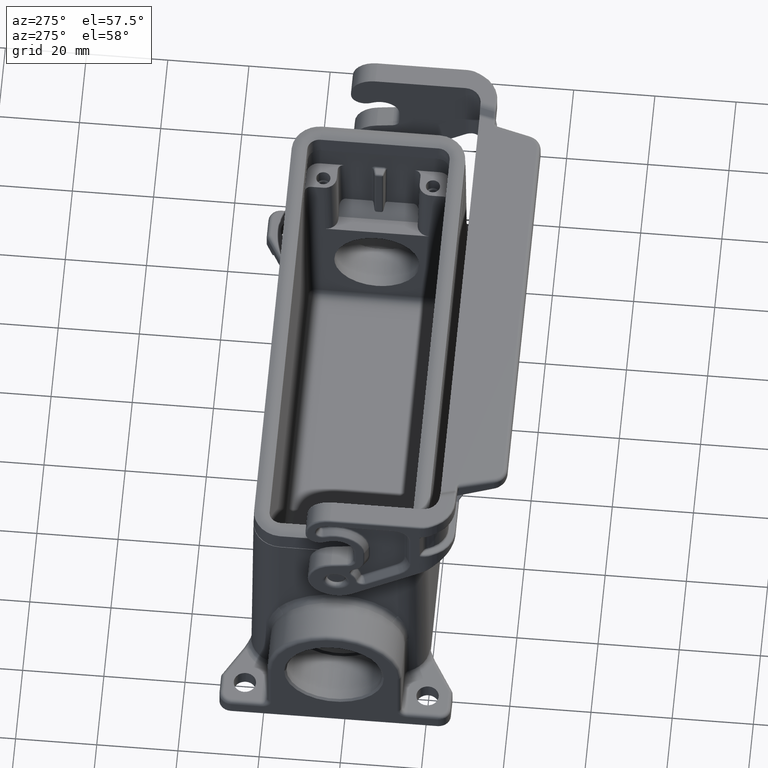
[diagram: clean part render]
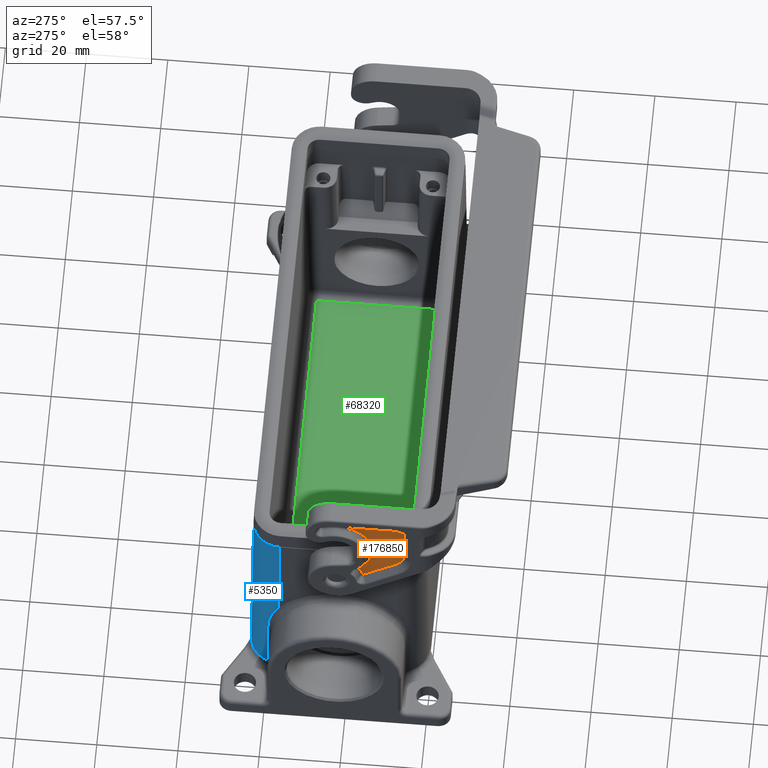
[diagram: same view with three faces highlighted in distinct colors, each labeled with its STEP entity id]
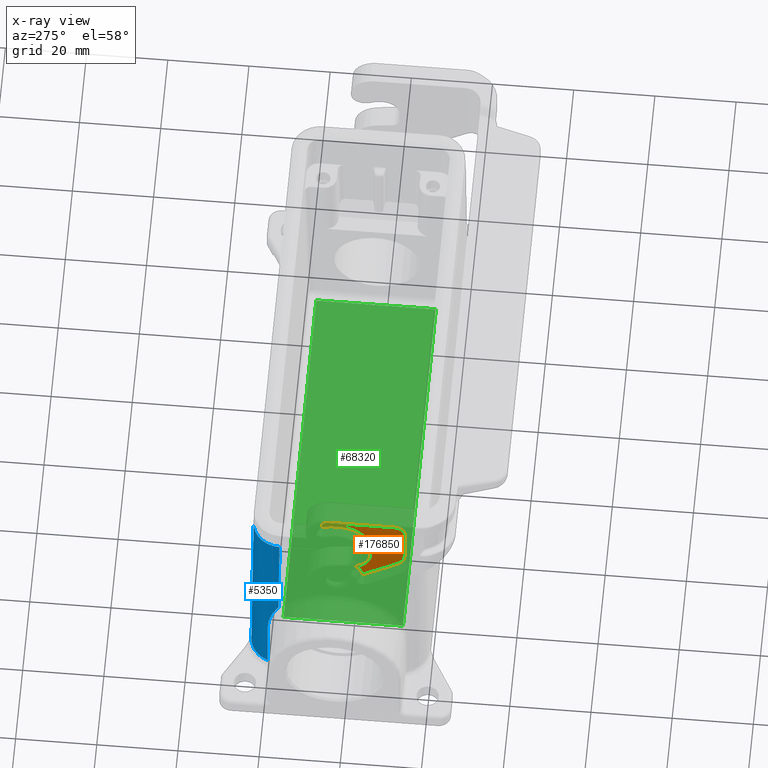
[diagram: x-ray of the same camera — body ghosted, the three highlighted faces saturated]
A machine part, auxiliary view with three faces highlighted in distinct colors.
The next image is the same camera in x-ray (body ghosted, the three faces saturated) — at least one of them is partly hidden behind the body in this view.
Their STEP definitions:

[orange] entity #176850 — the highlighted planar face has unit normal (-1, -0, 0).
#175360=CARTESIAN_POINT('',(-16.6989291725245,65.0000003246407,
75.4999999999994));
#175370=VERTEX_POINT('',#175360);
#175400=CARTESIAN_POINT('',(-14.1423048454985,65.0000003246407,
75.4999999999994));
#175410=DIRECTION('',(1.86243165512249E-16,1.,8.48534445547922E-16));
#175420=DIRECTION('',(-1.,1.86243165512251E-16,-1.3790124416382E-15));
#175430=AXIS2_PLACEMENT_3D('',#175400,#175410,#175420);
#175440=CIRCLE('',#175430,2.55662432702599);
#175450=CARTESIAN_POINT('',(-14.1423048454985,65.0000003246407,
78.0566243270254));
#175460=VERTEX_POINT('',#175450);
#175470=EDGE_CURVE('',#175370,#175460,#175440,.T.);
#175670=CARTESIAN_POINT('',(-9.57115242274739,65.0000003246407,
67.5781854772389));
#175680=DIRECTION('',(-1.86243165512249E-16,1.,3.60655932882432E-15));
#175690=DIRECTION('',(-1.,-1.86243165511833E-16,-1.1535174204059E-13));
#175700=AXIS2_PLACEMENT_3D('',#175670,#175680,#175690);
#175710=PLANE('',#175700);
#175720=CARTESIAN_POINT('',(-12.1423048454985,65.0000003246407,
65.3332952671978));
#175730=DIRECTION('',(1.86243165512249E-16,1.,8.48534445547922E-16));
#175740=DIRECTION('',(-1.,1.86243165512251E-16,-1.3790124416382E-15));
#175750=AXIS2_PLACEMENT_3D('',#175720,#175730,#175740);
#175760=CIRCLE('',#175750,4.55662432702599);
#175770=CARTESIAN_POINT('',(-14.7558771887841,65.0000003246407,
61.6007271346572));
#175780=VERTEX_POINT('',#175770);
#175790=CARTESIAN_POINT('',(-16.6989291725245,65.0000003246407,
65.3332952671978));
#175800=VERTEX_POINT('',#175790);
#175810=EDGE_CURVE('',#175780,#175800,#175760,.T.);
#175820=ORIENTED_EDGE('',*,*,#175810,.T.);
#175830=CARTESIAN_POINT('',(334.36292398244,65.0000003246417,
-182.854889176111));
#175840=DIRECTION('',(0.819152044289058,2.22505120191135E-15,
-0.573576436350952));
#175850=VECTOR('',#175840,1.);
#175860=LINE('',#175830,#175850);
#175870=CARTESIAN_POINT('',(-6.47666880141725,65.0000003246407,
55.8035630114154));
#175880=VERTEX_POINT('',#175870);
#175890=EDGE_CURVE('',#175780,#175880,#175860,.T.);
#175900=ORIENTED_EDGE('',*,*,#175890,.F.);
#175910=CARTESIAN_POINT('',(-6.44419042171097,65.0000003246407,
55.8499469446551));
#175920=DIRECTION('',(1.86243165512249E-16,1.,8.48534445547922E-16));
#175930=DIRECTION('',(-1.,1.86243165512251E-16,-1.3790124416382E-15));
#175940=AXIS2_PLACEMENT_3D('',#175910,#175920,#175930);
#175950=CIRCLE('',#175940,0.0566243270259292);
#175960=CARTESIAN_POINT('',(-6.38805227619469,65.0000003246407,
55.8425426871553));
#175970=VERTEX_POINT('',#175960);
#175980=EDGE_CURVE('',#175970,#175880,#175950,.T.);
#175990=ORIENTED_EDGE('',*,*,#175980,.T.);
#176000=CARTESIAN_POINT('',(0.,65.0000003246407,55.));
#176010=DIRECTION('',(1.86243165512249E-16,1.,8.48534445547922E-16));
#176020=DIRECTION('',(1.,-1.86243165512251E-16,1.3790124416382E-15));
#176030=AXIS2_PLACEMENT_3D('',#176000,#176010,#176020);
#176040=CIRCLE('',#176030,6.44337567297413);
#176050=CARTESIAN_POINT('',(-4.95567186128972,65.0000003246407,
59.1180585797552));
#176060=VERTEX_POINT('',#176050);
#176070=EDGE_CURVE('',#175970,#176060,#176040,.T.);
#176080=ORIENTED_EDGE('',*,*,#176070,.F.);
#176090=CARTESIAN_POINT('',(-4.99922226069975,65.0000003246407,
59.1542480412373));
#176100=DIRECTION('',(1.86243165512249E-16,1.,8.48534445547922E-16));
#176110=DIRECTION('',(-1.,1.86243165512251E-16,-1.3790124416382E-15));
#176120=AXIS2_PLACEMENT_3D('',#176090,#176100,#176110);
#176130=CIRCLE('',#176120,0.0566243270259292);
#176140=CARTESIAN_POINT('',(-4.97469239214928,65.0000003246407,
59.2052833227594));
#176150=VERTEX_POINT('',#176140);
#176160=EDGE_CURVE('',#176150,#176060,#176130,.T.);
#176170=ORIENTED_EDGE('',*,*,#176160,.T.);
#176180=CARTESIAN_POINT('',(-2.3999999999989,65.0000003246407,
64.5620242606714));
#176190=DIRECTION('',(1.86243165512249E-16,1.,8.48534445547922E-16));
#176200=DIRECTION('',(1.,-1.86243165512251E-16,1.3790124416382E-15));
#176210=AXIS2_PLACEMENT_3D('',#176180,#176190,#176200);
#176220=CIRCLE('',#176210,5.94337567297407);
#176230=CARTESIAN_POINT('',(-8.34337567297291,65.0000003246407,
64.5620242606708));
#176240=VERTEX_POINT('',#176230);
#176250=EDGE_CURVE('',#176150,#176240,#176220,.T.);
#176260=ORIENTED_EDGE('',*,*,#176250,.F.);
#176270=CARTESIAN_POINT('',(-8.34337567298729,65.0000003246403,
189.232226182514));
#176280=DIRECTION('',(-1.1535174204059E-13,-3.60655932882434E-15,1.));
#176290=VECTOR('',#176280,1.);
#176300=LINE('',#176270,#176290);
#176310=CARTESIAN_POINT('',(-8.34337567297257,65.0000003246407,
68.3999999999979));
#176320=VERTEX_POINT('',#176310);
#176330=EDGE_CURVE('',#176240,#176320,#176300,.T.);
#176340=ORIENTED_EDGE('',*,*,#176330,.F.);
#176350=CARTESIAN_POINT('',(1.47792889038101E-12,65.0000003246407,
68.3999999999988));
#176360=DIRECTION('',(-1.86243165512249E-16,-1.,-8.48534445547922E-16));
#176370=DIRECTION('',(1.,-1.86243165512251E-16,1.3790124416382E-15));
#176380=AXIS2_PLACEMENT_3D('',#176350,#176360,#176370);
#176390=CIRCLE('',#176380,8.34337567297405);
#176400=CARTESIAN_POINT('',(3.47640653040582,65.0000003246407,
75.9846236067269));
#176410=VERTEX_POINT('',#176400);
#176420=EDGE_CURVE('',#176410,#176320,#176390,.T.);
#176430=ORIENTED_EDGE('',*,*,#176420,.T.);
#176440=CARTESIAN_POINT('',(3.5,65.0000003246407,76.0360984802445));
#176450=DIRECTION('',(-1.86243165512249E-16,-1.,-8.48534445547922E-16));
#176460=DIRECTION('',(-1.,1.86243165512251E-16,-1.3790124416382E-15));
#176470=AXIS2_PLACEMENT_3D('',#176440,#176450,#176460);
#176480=CIRCLE('',#176470,0.0566243270259861);
#176490=CARTESIAN_POINT('',(3.55662432702599,65.0000003246407,
76.0360984802445));
#176500=VERTEX_POINT('',#176490);
#176510=EDGE_CURVE('',#176410,#176500,#176480,.T.);
#176520=ORIENTED_EDGE('',*,*,#176510,.F.);
#176530=CARTESIAN_POINT('',(3.55662432701291,65.0000003246403,
189.232226182514));
#176540=DIRECTION('',(-1.1535174204059E-13,-3.60655932882434E-15,1.));
#176550=VECTOR('',#176540,1.);
#176560=LINE('',#176530,#176550);
#176570=CARTESIAN_POINT('',(3.55662432702593,65.0000003246407,
76.4999999999996));
#176580=VERTEX_POINT('',#176570);
#176590=EDGE_CURVE('',#176500,#176580,#176560,.T.);
#176600=ORIENTED_EDGE('',*,*,#176590,.F.);
#176610=CARTESIAN_POINT('',(1.99999999999994,65.0000003246407,
76.4999999999995));
#176620=DIRECTION('',(-1.86243165512249E-16,-1.,-8.48534445547922E-16));
#176630=DIRECTION('',(-1.,1.86243165512251E-16,-1.3790124416382E-15));
#176640=AXIS2_PLACEMENT_3D('',#176610,#176620,#176630);
#176650=CIRCLE('',#176640,1.55662432702599);
#176660=CARTESIAN_POINT('',(1.99999999999994,65.0000003246407,
78.0566243270254));
#176670=VERTEX_POINT('',#176660);
#176680=EDGE_CURVE('',#176580,#176670,#176650,.T.);
#176690=ORIENTED_EDGE('',*,*,#176680,.F.);
#176700=CARTESIAN_POINT('',(334.362923982439,65.0000003246407,
78.0566243270256));
#176710=DIRECTION('',(-1.,-1.86243165512247E-16,-5.3047799609028E-16));
#176720=VECTOR('',#176710,1.);
#176730=LINE('',#176700,#176720);
#176740=EDGE_CURVE('',#176670,#175460,#176730,.T.);
#176750=ORIENTED_EDGE('',*,*,#176740,.F.);
#176760=ORIENTED_EDGE('',*,*,#175470,.T.);
#176770=CARTESIAN_POINT('',(-16.6989291725251,65.0000003246403,
189.232226182514));
#176780=DIRECTION('',(-5.30751722246423E-15,-3.60655932882432E-15,1.));
#176790=VECTOR('',#176780,1.);
#176800=LINE('',#176770,#176790);
#176810=EDGE_CURVE('',#175800,#175370,#176800,.T.);
#176820=ORIENTED_EDGE('',*,*,#176810,.T.);
#176830=EDGE_LOOP('',(#176820,#176760,#176750,#176690,#176600,#176520,
#176430,#176340,#176260,#176170,#176080,#175990,#175900,#175820));
#176840=FACE_OUTER_BOUND('',#176830,.T.);
#176850=ADVANCED_FACE('',(#176840),#175710,.T.);

[blue] entity #5350 — the highlighted cylindrical surface (edge-blend (fillet) strip) has radius 7 mm, axis along (0.0087, -0.0087, 0.9999).
#3600=CARTESIAN_POINT('',(15.0015283492685,53.5015283492682,0.));
#3610=DIRECTION('',(-0.00872620324394422,-0.00872620324394422,
0.99992385047757));
#3620=DIRECTION('',(0.999961923064171,0.,0.00872653549837393));
#3630=AXIS2_PLACEMENT_3D('',#3600,#3610,#3620);
#3640=CYLINDRICAL_SURFACE('',#3630,7.);
#3650=CARTESIAN_POINT('',(21.9539113581018,53.4541778966523,
5.48691019675244));
#3660=CARTESIAN_POINT('',(21.9539121808302,53.5051315589697,
5.48681592141895));
#3670=CARTESIAN_POINT('',(21.9533567025193,53.5560838336728,
5.48672070053648));
#3680=CARTESIAN_POINT('',(21.9486232468649,53.7729838171622,
5.486324013355));
#3690=CARTESIAN_POINT('',(21.9390995826001,53.9387624881312,
5.48603186379289));
#3700=CARTESIAN_POINT('',(21.904791363169,54.3067947735148,
5.48540790081217));
#3710=CARTESIAN_POINT('',(21.8770369462102,54.5087985916887,
5.48508210717947));
#3720=CARTESIAN_POINT('',(21.7367932081214,55.2782635866854,
5.48390565390257));
#3730=CARTESIAN_POINT('',(21.56305770488,55.8320161765169,
5.48319513698692));
#3740=CARTESIAN_POINT('',(21.0833844857239,56.8841407875998,
5.48212482617256));
#3750=CARTESIAN_POINT('',(20.7792948535255,57.3784602017461,
5.48176915406537));
#3760=CARTESIAN_POINT('',(20.0565024369308,58.2810211844696,
5.48143304126501));
#3770=CARTESIAN_POINT('',(19.6405841075601,58.6857855463389,
5.48145389580779));
#3780=CARTESIAN_POINT('',(18.7187121366584,59.3837830124946,
5.48187247336191));
#3790=CARTESIAN_POINT('',(18.2163098859177,59.674326954534,
5.48226858426677));
#3800=CARTESIAN_POINT('',(17.1515355316433,60.1252310501773,
5.48341633582383));
#3810=CARTESIAN_POINT('',(16.5932647091209,60.2838539910502,
5.48416355638399));
#3820=CARTESIAN_POINT('',(15.4504702308402,60.4602003239606,
5.4859705218593));
#3830=CARTESIAN_POINT('',(14.8703473646752,60.4772440036944,
5.48702330948638));
#3840=CARTESIAN_POINT('',(13.7191213017222,60.3682990019333,
5.48937944790709));
#3850=CARTESIAN_POINT('',(13.1524514662327,60.2427194266777,
5.4906737447523));
#3860=CARTESIAN_POINT('',(12.0629329659822,59.8550970794496,
5.49343555098718));
#3870=CARTESIAN_POINT('',(11.5442784597593,59.5945459512743,
5.49489242964771));
#3880=CARTESIAN_POINT('',(10.5828273537101,58.9518414315056,
5.49789171506904));
#3890=CARTESIAN_POINT('',(10.1437401404152,58.5721490133689,
5.49942258512452));
#3900=CARTESIAN_POINT('',(9.36896252782202,57.7134740724939,
5.50247664693199));
#3910=CARTESIAN_POINT('',(9.03625484049159,57.2377976042381,
5.5039880805945));
#3920=CARTESIAN_POINT('',(8.76583193009109,56.7266498036135,
5.50544938123241));
#3930=B_SPLINE_CURVE_WITH_KNOTS('',3,(#3650,#3660,#3670,#3680,#3690,
#3700,#3710,#3720,#3730,#3740,#3750,#3760,#3770,#3780,#3790,#3800,#3810,
#3820,#3830,#3840,#3850,#3860,#3870,#3880,#3890,#3900,#3910,#3920),
.UNSPECIFIED.,.F.,.F.,(4,2,2,2,2,2,2,2,2,2,2,2,2,4),(0.,
0.169319345934422,0.7209333631417,1.39758146497215,3.31542789785075,
5.23326796751253,7.15110962781119,9.06895391979874,10.9868042473211,
12.904663825677,14.8226636383836,16.7406709734965,18.6588863502231,
20.577100732679),.UNSPECIFIED.);
#3940=CARTESIAN_POINT('',(21.9539113581018,53.4541778966523,
5.48691019675244));
#3950=VERTEX_POINT('',#3940);
#3960=CARTESIAN_POINT('',(17.4625353256423,59.9891096317851,
5.48308936615439));
#3970=VERTEX_POINT('',#3960);
#3980=EDGE_CURVE('',#3950,#3970,#3930,.T.);
#3990=ORIENTED_EDGE('',*,*,#3980,.T.);
#4000=CARTESIAN_POINT('',(22.0012618107177,53.5015283492682,
0.0610857484886175));
#4010=DIRECTION('',(0.00872620324394422,0.00872620324394422,
-0.99992385047757));
#4020=VECTOR('',#4010,1.);
#4030=LINE('',#4000,#4020);
#4040=CARTESIAN_POINT('',(21.5,53.0002665385505,57.5));
#4050=VERTEX_POINT('',#4040);
#4060=EDGE_CURVE('',#4050,#3950,#4030,.T.);
#4070=ORIENTED_EDGE('',*,*,#4060,.T.);
#4080=CARTESIAN_POINT('',(14.4997334512998,52.9997334512996,57.5));
#4090=DIRECTION('',(0.,0.,-1.));
#4100=DIRECTION('',(0.707106781186218,0.707106781186877,0.));
#4110=AXIS2_PLACEMENT_3D('',#4080,#4090,#4100);
#4120=ELLIPSE('',#4110,7.00053308725135,7.);
#4130=CARTESIAN_POINT('',(14.5002665385508,59.9999999999997,57.5));
#4140=VERTEX_POINT('',#4130);
#4150=EDGE_CURVE('',#4140,#4050,#4120,.T.);
#4160=ORIENTED_EDGE('',*,*,#4150,.T.);
#4170=CARTESIAN_POINT('',(15.0015283492685,60.5012618107174,
0.0610857484886175));
#4180=DIRECTION('',(0.00872620324394422,0.00872620324394422,
-0.99992385047757));
#4190=VECTOR('',#4180,1.);
#4200=LINE('',#4170,#4190);
#4210=CARTESIAN_POINT('',(14.7374480780062,60.2371815394552,
30.3216875582114));
#4220=VERTEX_POINT('',#4210);
#4230=EDGE_CURVE('',#4140,#4220,#4200,.T.);
#4240=ORIENTED_EDGE('',*,*,#4230,.F.);
#4250=CARTESIAN_POINT('',(17.4402057411484,59.8216142976414,
19.9829707502005));
#4260=CARTESIAN_POINT('',(17.440115780304,59.8209356564323,
20.0413835334102));
#4270=CARTESIAN_POINT('',(17.4397917210615,59.8203513514532,
20.0997972129644));
#4280=CARTESIAN_POINT('',(17.4388636080359,59.8195362155598,
20.196905317216));
#4290=CARTESIAN_POINT('',(17.4383909954933,59.8192527566896,
20.2356009403489));
#4300=CARTESIAN_POINT('',(17.4350968898819,59.8178670704258,
20.4571237041562));
#4310=CARTESIAN_POINT('',(17.4300833728981,59.8176480086408,
20.6399297316984));
#4320=CARTESIAN_POINT('',(17.4154720594085,59.8190346289867,
21.0052563869803));
#4330=CARTESIAN_POINT('',(17.4058745185508,59.8206399789896,
21.187794125153));
#4340=CARTESIAN_POINT('',(17.3821070709589,59.8256143393841,
21.5523896962907));
#4350=CARTESIAN_POINT('',(17.3679377979521,59.8289828780756,
21.7344638486579));
#4360=CARTESIAN_POINT('',(17.3350431536072,59.8373880871269,
22.0979648123262));
#4370=CARTESIAN_POINT('',(17.3163183141562,59.8424243587313,
22.2794066871285));
#4380=CARTESIAN_POINT('',(17.2743369366139,59.8540359315458,
22.6414412550713));
#4390=CARTESIAN_POINT('',(17.2510819497151,59.8606105442814,
22.8220475603936));
#4400=CARTESIAN_POINT('',(17.2000678817693,59.8751393922149,
23.1822413649542));
#4410=CARTESIAN_POINT('',(17.1723108589574,59.8830928915801,
23.3618407694067));
#4420=CARTESIAN_POINT('',(17.1123244907941,59.9001921021337,
23.7198539173669));
#4430=CARTESIAN_POINT('',(17.0800979625205,59.9093370179675,
23.8982777216127));
#4440=CARTESIAN_POINT('',(17.0112733561279,59.9285880645046,
24.253440014997));
#4450=CARTESIAN_POINT('',(16.9746875466149,59.9386914861179,
24.4301887762783));
#4460=CARTESIAN_POINT('',(16.8971302504714,59.9596412270088,
24.7822048997229));
#4470=CARTESIAN_POINT('',(16.8561630312289,59.9704868757278,
24.9574791148296));
#4480=CARTESIAN_POINT('',(16.7698790751575,59.9926683269767,
25.3064081780885));
#4490=CARTESIAN_POINT('',(16.7245673060323,60.0040036467501,
25.4800687271026));
#4500=CARTESIAN_POINT('',(16.629631823678,60.0268939650202,
25.8256346176782));
#4510=CARTESIAN_POINT('',(16.5800138511545,60.0384487507171,
25.9975447615255));
#4520=CARTESIAN_POINT('',(16.4765047164465,60.0614915962441,
26.3394763940487));
#4530=CARTESIAN_POINT('',(16.4226200297788,60.0729798251921,
26.5095021640903));
#4540=CARTESIAN_POINT('',(16.3106160639887,60.0955888717034,
26.8475374206656));
#4550=CARTESIAN_POINT('',(16.2525037804424,60.1067103530377,
27.0155510199311));
#4560=CARTESIAN_POINT('',(16.1320867292437,60.1282710886421,
27.3494279570449));
#4570=CARTESIAN_POINT('',(16.0697894836599,60.138711629086,
27.5152956858998));
#4580=CARTESIAN_POINT('',(15.941046099995,60.1585826677259,
27.84474845683));
#4590=CARTESIAN_POINT('',(15.8746078005272,60.1680151611205,
28.0083383265213));
#4600=CARTESIAN_POINT('',(15.7377847797276,60.185509264516,
28.3327311544695));
#4610=CARTESIAN_POINT('',(15.6674177104422,60.1935766533986,
28.4935440938842));
#4620=CARTESIAN_POINT('',(15.5226583897389,60.2080139709069,
28.8126088100495));
#4630=CARTESIAN_POINT('',(15.4482739709439,60.2143876533421,
28.970867771786));
#4640=CARTESIAN_POINT('',(15.2955500246729,60.2250715421583,
29.2846569638746));
#4650=CARTESIAN_POINT('',(15.2172181802132,60.229386641566,
29.4401963300968));
#4660=CARTESIAN_POINT('',(15.0566749044643,60.2355745023778,
29.7483832320101));
#4670=CARTESIAN_POINT('',(14.9744704292997,60.2374531417849,
29.9010416597038));
#4680=CARTESIAN_POINT('',(14.8749436023379,60.2379986391548,
30.0798898444973));
#4690=CARTESIAN_POINT('',(14.8595509524327,60.2380356887051,
30.1073865752458));
#4700=CARTESIAN_POINT('',(14.8088856257222,60.2379989658649,
30.1973582007751));
#4710=CARTESIAN_POINT('',(14.7733553349319,60.2377232686786,
30.2596115377638));
#4720=CARTESIAN_POINT('',(14.7374480780062,60.2371815394552,
30.3216875582114));
#4730=B_SPLINE_CURVE_WITH_KNOTS('',3,(#4250,#4260,#4270,#4280,#4290,
#4300,#4310,#4320,#4330,#4340,#4350,#4360,#4370,#4380,#4390,#4400,#4410,
#4420,#4430,#4440,#4450,#4460,#4470,#4480,#4490,#4500,#4510,#4520,#4530,
#4540,#4550,#4560,#4570,#4580,#4590,#4600,#4610,#4620,#4630,#4640,#4650,
#4660,#4670,#4680,#4690,#4700,#4710,#4720),.UNSPECIFIED.,.F.,.F.,(4,2,2,
2,2,2,2,2,2,2,2,2,2,2,2,2,2,2,2,2,2,2,2,4),(0.,0.168092270959983,
0.279449832537725,0.805616234002088,1.3316764809375,1.8575454674328,
2.38320228643588,2.90850827803156,3.43339596828346,3.95778282905809,
4.48058048603214,5.00274067649962,5.52420265438151,6.0448983905602,
6.56475917599136,7.0837324030688,7.60175138859518,8.11876665042431,
8.6335644555907,9.14725164089933,9.65974768228696,10.171027705509,
10.2640923403624,10.4760449734825),.UNSPECIFIED.);
#4740=CARTESIAN_POINT('',(17.4402057411484,59.8216142976414,
19.9829707502005));
#4750=VERTEX_POINT('',#4740);
#4760=EDGE_CURVE('',#4750,#4220,#4730,.T.);
#4770=ORIENTED_EDGE('',*,*,#4760,.T.);
#4780=CARTESIAN_POINT('',(17.4625353302716,59.989109666311,
5.48308636007599));
#4790=CARTESIAN_POINT('',(17.4621225249526,59.9860309067417,
5.75114594216556));
#4800=CARTESIAN_POINT('',(17.4617097196395,59.9829511702628,
6.01920551189415));
#4810=CARTESIAN_POINT('',(17.4612143535795,59.9792543153923,
6.34087678025693));
#4820=CARTESIAN_POINT('',(17.461131792827,59.9786381357202,
6.39448849081618));
#4830=CARTESIAN_POINT('',(17.4609666713223,59.9774056981351,
6.50171191093996));
#4840=CARTESIAN_POINT('',(17.4608841105702,59.9767894402223,
6.5553236205045));
#4850=CARTESIAN_POINT('',(17.4607189890666,59.9755568461409,
6.66254703863785));
#4860=CARTESIAN_POINT('',(17.4606364283149,59.9749405099724,
6.71615874720668));
#4870=CARTESIAN_POINT('',(17.4602496693688,59.9720530766714,
6.96730481081046));
#4880=CARTESIAN_POINT('',(17.4596412729859,59.967509898093,
7.36237350834639));
#4890=CARTESIAN_POINT('',(17.4590328766162,59.9629645928699,
7.7574421787235));
#4900=CARTESIAN_POINT('',(17.4577738252127,59.9535560674812,
8.57502061439045));
#4910=CARTESIAN_POINT('',(17.4568189720242,59.9464154852248,
9.19506465421467));
#4920=CARTESIAN_POINT('',(17.4556254055795,59.9374831884872,
9.97011962006389));
#4930=CARTESIAN_POINT('',(17.4553866922927,59.9356964006938,
10.1251306090372));
#4940=CARTESIAN_POINT('',(17.454909265723,59.9321221677896,
10.4351525786008));
#4950=CARTESIAN_POINT('',(17.4546705524402,59.9303347226787,
10.590163559191));
#4960=CARTESIAN_POINT('',(17.4539544125978,59.9249714007312,
11.0551964884026));
#4970=CARTESIAN_POINT('',(17.4534769860444,59.9213945372798,
11.3652184244645));
#4980=CARTESIAN_POINT('',(17.4529582791308,59.9175069716334,
11.7020461825595));
#4990=CARTESIAN_POINT('',(17.4529169987626,59.9171975767805,
11.7288520211731));
#5000=CARTESIAN_POINT('',(17.4527931565298,59.9162693542172,
11.8092702694864));
#5010=CARTESIAN_POINT('',(17.4527105857656,59.9156504954334,
11.8628798972112));
#5020=CARTESIAN_POINT('',(17.4525412496398,59.9143811258595,
11.972839876183));
#5030=CARTESIAN_POINT('',(17.452454491144,59.9137306196101,
12.0291861740128));
#5040=CARTESIAN_POINT('',(17.4523267014908,59.9127725586895,
12.1121677187883));
#5050=CARTESIAN_POINT('',(17.4522856848546,59.9124650402166,
12.138802299424));
#5060=CARTESIAN_POINT('',(17.4521938714913,59.9117766561634,
12.1984222645715));
#5070=CARTESIAN_POINT('',(17.4521430747643,59.9113957853921,
12.2314076490203));
#5080=CARTESIAN_POINT('',(17.4520414813102,59.9106340140117,
12.2973784175556));
#5090=CARTESIAN_POINT('',(17.4519906845833,59.9102531134025,
12.3303638016423));
#5100=CARTESIAN_POINT('',(17.4510193965416,59.9029695988469,
12.9610798128285));
#5110=CARTESIAN_POINT('',(17.4500989052525,59.8960621001579,
13.5588103806324));
#5120=CARTESIAN_POINT('',(17.4482579227263,59.8822372787816,
14.7542713966856));
#5130=CARTESIAN_POINT('',(17.4473374314893,59.8753199560942,
15.3520018449348));
#5140=CARTESIAN_POINT('',(17.4457881314958,59.8636689624266,
16.3580556516021));
#5150=CARTESIAN_POINT('',(17.4451593227253,59.8589379178053,
16.7663790420621));
#5160=CARTESIAN_POINT('',(17.4442161095881,59.8518378980107,
17.378864085555));
#5170=CARTESIAN_POINT('',(17.4435873008362,59.8471034005267,
17.7871874338178));
#5180=CARTESIAN_POINT('',(17.4429584920967,59.8423665991681,
18.1955107539014));
#5190=CARTESIAN_POINT('',(17.4425424942958,59.8392321348132,
18.465643130127));
#5200=CARTESIAN_POINT('',(17.442440900862,59.8384665874079,
18.5316138526308));
#5210=CARTESIAN_POINT('',(17.4422377139949,59.8369353721844,
18.6635552961639));
#5220=CARTESIAN_POINT('',(17.4421361205617,59.8361697043662,
18.7295260171933));
#5230=CARTESIAN_POINT('',(17.4419329336959,59.8346382482836,
18.8614674577767));
#5240=CARTESIAN_POINT('',(17.4418313402634,59.8338724600193,
18.9274381773308));
#5250=CARTESIAN_POINT('',(17.4413079839169,59.8299272081838,
19.2672848939556));
#5260=CARTESIAN_POINT('',(17.4408862210082,59.8267467666359,
19.5411608790447));
#5270=CARTESIAN_POINT('',(17.4403782538607,59.8229150218517,
19.8710144424509));
#5280=CARTESIAN_POINT('',(17.4402919505993,59.8222646860789,
19.9269899756836));
#5290=CARTESIAN_POINT('',(17.4402057411484,59.8216142976414,
19.9829707502005));
#5300=(BOUNDED_CURVE() B_SPLINE_CURVE(3,(#4780,#4790,#4800,#4810,#4820,
#4830,#4840,#4850,#4860,#4870,#4880,#4890,#4900,#4910,#4920,#4930,#4940,
#4950,#4960,#4970,#4980,#4990,#5000,#5010,#5020,#5030,#5040,#5050,#5060,
#5070,#5080,#5090,#5100,#5110,#5120,#5130,#5140,#5150,#5160,#5170,#5180,
#5190,#5200,#5210,#5220,#5230,#5240,#5250,#5260,#5270,#5280,#5290),
.UNSPECIFIED.,.F.,.F.) B_SPLINE_CURVE_WITH_KNOTS((4,2,2,2,2,1,2,2,2,2,2,
2,2,2,2,2,2,2,2,2,1,2,2,2,2,2,4),(32.7049976641282,33.5092360489946,
33.6700831247077,33.8309302004207,33.9917772761337,34.5844243784907,
35.1770714808476,37.0373422831143,37.502409983681,37.9674776842477,
38.897613085381,38.9780366232375,39.1388858976568,39.3079394519623,
39.3878491795229,39.4868127467357,39.5857763139485,41.3791025725591,
43.1724288311697,44.3974913725503,45.0100226432406,45.6225539139309,
45.8204810483565,46.0184081827822,46.2163353172078,47.0380254913807,
47.2059709893361),.UNSPECIFIED.) CURVE() GEOMETRIC_REPRESENTATION_ITEM()
 RATIONAL_B_SPLINE_CURVE((0.999999999999999,0.999999999999999,
0.999999999999999,0.999999999999999,0.999999999999999,0.999999999999999,
0.999999999999999,0.999999999999999,0.999999999999999,0.999999999999999,
0.999999999999998,0.999999999999998,0.999999999999999,0.999999999999999,
0.999999999999999,0.999999999999999,0.999999999999999,0.999999999999999,
0.999999999999999,0.999999999999999,0.999999999999999,0.999999999999999,
0.999999999999999,0.999999999999999,0.999999999999999,0.999999999999999,
0.999999999999999,0.999999999999999,0.999999999999999,0.999999999999999,
0.999999999999999,0.999999999999999,0.999999999999999,0.999999999999999,
0.999999999999999,0.999999999999999,0.999999999999999,0.999999999999999,
0.999999999999999,0.999999999999999,0.999999999999999,0.999999999999999,
0.999999999999999,0.999999999999999,0.999999999999999,0.999999999999999,
0.999999999999999,0.999999999999999,0.999999999999999,0.999999999999999,
0.999999999999999,0.999999999999999)) REPRESENTATION_ITEM(''));
#5310=EDGE_CURVE('',#3970,#4750,#5300,.T.);
#5320=ORIENTED_EDGE('',*,*,#5310,.T.);
#5330=EDGE_LOOP('',(#5320,#4770,#4240,#4160,#4070,#3990));
#5340=FACE_OUTER_BOUND('',#5330,.T.);
#5350=ADVANCED_FACE('',(#5340),#3640,.T.);

[green] entity #68320 — the highlighted planar face has unit normal (0, 0, 1).
#67930=CARTESIAN_POINT('',(0.,-1.98951966012828E-13,4.));
#67940=DIRECTION('',(0.,-0.,1.));
#67950=DIRECTION('',(0.,1.,0.));
#67960=AXIS2_PLACEMENT_3D('',#67930,#67940,#67950);
#67970=PLANE('',#67960);
#67980=CARTESIAN_POINT('',(0.,46.2020719719104,4.));
#67990=DIRECTION('',(1.,9.0514998186E-16,0.));
#68000=VECTOR('',#67990,1.);
#68010=LINE('',#67980,#68000);
#68020=CARTESIAN_POINT('',(-14.7020719719106,46.2020719719104,4.));
#68030=VERTEX_POINT('',#68020);
#68040=CARTESIAN_POINT('',(14.7020719719106,46.2020719719104,4.));
#68050=VERTEX_POINT('',#68040);
#68060=EDGE_CURVE('',#68030,#68050,#68010,.T.);
#68070=ORIENTED_EDGE('',*,*,#68060,.F.);
#68080=CARTESIAN_POINT('',(14.7020719719106,0.,4.));
#68090=DIRECTION('',(0.,-1.,0.));
#68100=VECTOR('',#68090,1.);
#68110=LINE('',#68080,#68100);
#68120=CARTESIAN_POINT('',(14.7020719719106,-46.2020719719108,4.));
#68130=VERTEX_POINT('',#68120);
#68140=EDGE_CURVE('',#68050,#68130,#68110,.T.);
#68150=ORIENTED_EDGE('',*,*,#68140,.F.);
#68160=CARTESIAN_POINT('',(0.,-46.2020719719108,4.));
#68170=DIRECTION('',(1.,-9.0514998186E-16,0.));
#68180=VECTOR('',#68170,1.);
#68190=LINE('',#68160,#68180);
#68200=CARTESIAN_POINT('',(-14.7020719719106,-46.2020719719108,4.));
#68210=VERTEX_POINT('',#68200);
#68220=EDGE_CURVE('',#68210,#68130,#68190,.T.);
#68230=ORIENTED_EDGE('',*,*,#68220,.T.);
#68240=CARTESIAN_POINT('',(-14.7020719719106,0.,4.));
#68250=DIRECTION('',(0.,1.,0.));
#68260=VECTOR('',#68250,1.);
#68270=LINE('',#68240,#68260);
#68280=EDGE_CURVE('',#68210,#68030,#68270,.T.);
#68290=ORIENTED_EDGE('',*,*,#68280,.F.);
#68300=EDGE_LOOP('',(#68290,#68230,#68150,#68070));
#68310=FACE_OUTER_BOUND('',#68300,.T.);
#68320=ADVANCED_FACE('',(#68310),#67970,.T.);